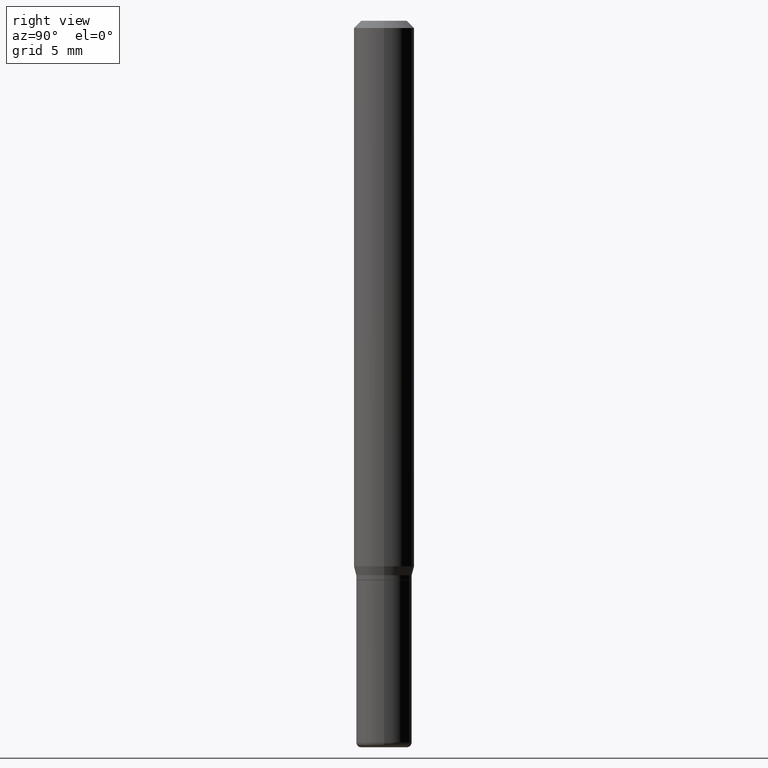
[diagram: clean part render]
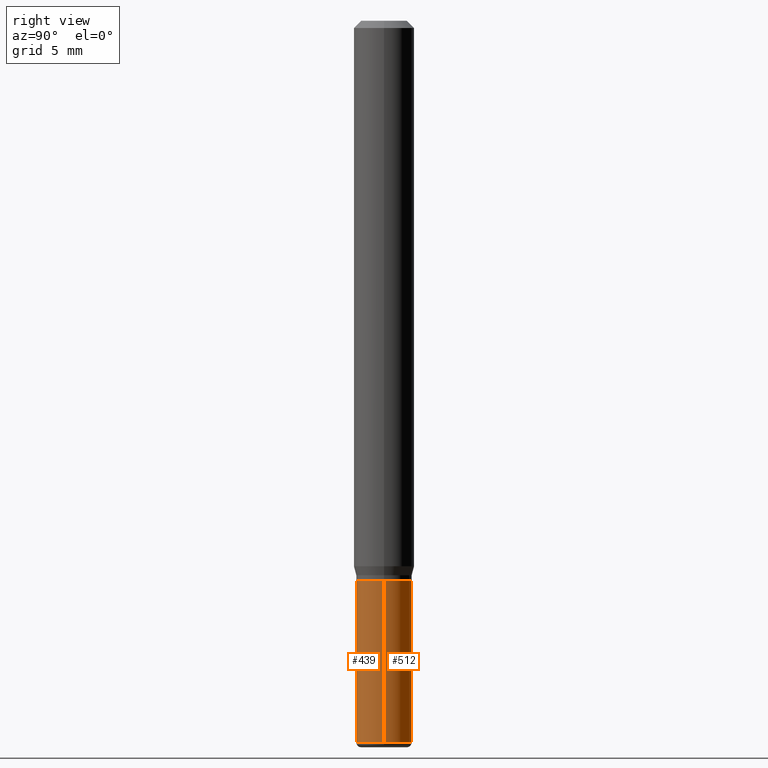
[diagram: same view with one multi-face feature highlighted, each face labeled with its STEP entity id]
A machine part, right view. The highlighted faces form ONE feature: a constant-radius fillet chain: 2 tangent blend faces with common blend radius 1.4605 mm. The faces share edges in the B-rep.
Their STEP definitions:
[1] entity #439 (Cylinder):
#8 = DIRECTION ( 'NONE',  ( 1.000000000000000000, -6.982962677686273810E-15, 0.000000000000000000 ) ) ;
#33 = DIRECTION ( 'NONE',  ( 1.000000000000000000, -6.982962677686263555E-15, 0.000000000000000000 ) ) ;
#36 = DIRECTION ( 'NONE',  ( -2.445468806185136597E-29, 3.491481338843145583E-15, 1.000000000000000000 ) ) ;
#44 = EDGE_CURVE ( 'NONE', #344, #70, #289, .T. ) ;
#70 = VERTEX_POINT ( 'NONE', #436 ) ;
#88 = DIRECTION ( 'NONE',  ( -2.445468806185136877E-29, 3.491481338843145188E-15, 1.000000000000000000 ) ) ;
#94 = CARTESIAN_POINT ( 'NONE',  ( -0.05749999999999994699, -4.208921997558003169E-15, -1.490000000000000213 ) ) ;
#98 = ORIENTED_EDGE ( 'NONE', *, *, #487, .F. ) ;
#130 = ORIENTED_EDGE ( 'NONE', *, *, #302, .T. ) ;
#140 = VECTOR ( 'NONE', #147, 39.37007874015748143 ) ;
#141 = ORIENTED_EDGE ( 'NONE', *, *, #178, .F. ) ;
#147 = DIRECTION ( 'NONE',  ( -2.445468806185136877E-29, 3.491481338843145188E-15, 1.000000000000000000 ) ) ;
#168 = LINE ( 'NONE', #328, #486 ) ;
#178 = EDGE_CURVE ( 'NONE', #250, #197, #435, .T. ) ;
#197 = VERTEX_POINT ( 'NONE', #307 ) ;
#210 = CARTESIAN_POINT ( 'NONE',  ( 2.824516471143833307E-29, -4.032660946363833383E-15, -1.155000000000000027 ) ) ;
#246 = CARTESIAN_POINT ( 'NONE',  ( 3.643748521215853910E-29, -5.202307194876288105E-15, -1.490000000000000213 ) ) ;
#250 = VERTEX_POINT ( 'NONE', #443 ) ;
#252 = CYLINDRICAL_SURFACE ( 'NONE', #460, 0.05749999999999997474 ) ;
#289 = CIRCLE ( 'NONE', #303, 0.05749999999999994699 ) ;
#299 = EDGE_LOOP ( 'NONE', ( #98, #389, #130, #141 ) ) ;
#302 = EDGE_CURVE ( 'NONE', #70, #197, #386, .T. ) ;
#303 = AXIS2_PLACEMENT_3D ( 'NONE', #246, #36, #33 ) ;
#307 = CARTESIAN_POINT ( 'NONE',  ( 0.05750000000000000250, -4.434181300330794192E-15, -1.155000000000000027 ) ) ;
#328 = CARTESIAN_POINT ( 'NONE',  ( -0.05749999999999997474, 4.085620730620574274E-16, -2.828387676896569661E-30 ) ) ;
#344 = VERTEX_POINT ( 'NONE', #94 ) ;
#371 = DIRECTION ( 'NONE',  ( -2.445468806185136597E-29, 3.491481338843145583E-15, 1.000000000000000000 ) ) ;
#376 = CARTESIAN_POINT ( 'NONE',  ( 0.05749999999999997474, -4.015203539669602175E-16, 2.803801646082662240E-30 ) ) ;
#386 = LINE ( 'NONE', #376, #140 ) ;
#389 = ORIENTED_EDGE ( 'NONE', *, *, #44, .T. ) ;
#404 = DIRECTION ( 'NONE',  ( 1.000000000000000000, -6.982962677686267499E-15, 4.876176775795936353E-29 ) ) ;
#435 = CIRCLE ( 'NONE', #503, 0.05750000000000000250 ) ;
#436 = CARTESIAN_POINT ( 'NONE',  ( 0.05749999999999994699, -5.603827548843247337E-15, -1.490000000000000213 ) ) ;
#439 = ADVANCED_FACE ( 'NONE', ( #454 ), #252, .T. ) ;
#443 = CARTESIAN_POINT ( 'NONE',  ( -0.05750000000000000250, -4.208921997558003169E-15, -1.155000000000000027 ) ) ;
#454 = FACE_OUTER_BOUND ( 'NONE', #299, .T. ) ;
#460 = AXIS2_PLACEMENT_3D ( 'NONE', #481, #490, #404 ) ;
#481 = CARTESIAN_POINT ( 'NONE',  ( 0.000000000000000000, 0.000000000000000000, 0.000000000000000000 ) ) ;
#486 = VECTOR ( 'NONE', #88, 39.37007874015748143 ) ;
#487 = EDGE_CURVE ( 'NONE', #344, #250, #168, .T. ) ;
#490 = DIRECTION ( 'NONE',  ( -2.445468806185136597E-29, 3.491481338843145583E-15, 1.000000000000000000 ) ) ;
#503 = AXIS2_PLACEMENT_3D ( 'NONE', #210, #371, #8 ) ;
[2] entity #512 (Cylinder):
#4 = DIRECTION ( 'NONE',  ( -2.445468806185136597E-29, 3.491481338843145583E-15, 1.000000000000000000 ) ) ;
#45 = CARTESIAN_POINT ( 'NONE',  ( 0.000000000000000000, 0.000000000000000000, 0.000000000000000000 ) ) ;
#70 = VERTEX_POINT ( 'NONE', #436 ) ;
#88 = DIRECTION ( 'NONE',  ( -2.445468806185136877E-29, 3.491481338843145188E-15, 1.000000000000000000 ) ) ;
#91 = AXIS2_PLACEMENT_3D ( 'NONE', #357, #517, #235 ) ;
#94 = CARTESIAN_POINT ( 'NONE',  ( -0.05749999999999994699, -4.208921997558003169E-15, -1.490000000000000213 ) ) ;
#108 = DIRECTION ( 'NONE',  ( 1.000000000000000000, -6.982962677686263555E-15, 0.000000000000000000 ) ) ;
#121 = EDGE_CURVE ( 'NONE', #197, #250, #269, .T. ) ;
#125 = DIRECTION ( 'NONE',  ( -2.445468806185136597E-29, 3.491481338843145583E-15, 1.000000000000000000 ) ) ;
#140 = VECTOR ( 'NONE', #147, 39.37007874015748143 ) ;
#147 = DIRECTION ( 'NONE',  ( -2.445468806185136877E-29, 3.491481338843145188E-15, 1.000000000000000000 ) ) ;
#168 = LINE ( 'NONE', #328, #486 ) ;
#176 = ORIENTED_EDGE ( 'NONE', *, *, #323, .T. ) ;
#197 = VERTEX_POINT ( 'NONE', #307 ) ;
#206 = FACE_OUTER_BOUND ( 'NONE', #271, .T. ) ;
#209 = DIRECTION ( 'NONE',  ( 1.000000000000000000, -6.982962677686267499E-15, 4.876176775795936353E-29 ) ) ;
#235 = DIRECTION ( 'NONE',  ( 1.000000000000000000, -6.982962677686273810E-15, 0.000000000000000000 ) ) ;
#250 = VERTEX_POINT ( 'NONE', #443 ) ;
#269 = CIRCLE ( 'NONE', #91, 0.05750000000000000250 ) ;
#271 = EDGE_LOOP ( 'NONE', ( #176, #415, #496, #456 ) ) ;
#302 = EDGE_CURVE ( 'NONE', #70, #197, #386, .T. ) ;
#307 = CARTESIAN_POINT ( 'NONE',  ( 0.05750000000000000250, -4.434181300330794192E-15, -1.155000000000000027 ) ) ;
#323 = EDGE_CURVE ( 'NONE', #70, #344, #407, .T. ) ;
#328 = CARTESIAN_POINT ( 'NONE',  ( -0.05749999999999997474, 4.085620730620574274E-16, -2.828387676896569661E-30 ) ) ;
#344 = VERTEX_POINT ( 'NONE', #94 ) ;
#357 = CARTESIAN_POINT ( 'NONE',  ( 2.824516471143833307E-29, -4.032660946363833383E-15, -1.155000000000000027 ) ) ;
#368 = CYLINDRICAL_SURFACE ( 'NONE', #417, 0.05749999999999997474 ) ;
#376 = CARTESIAN_POINT ( 'NONE',  ( 0.05749999999999997474, -4.015203539669602175E-16, 2.803801646082662240E-30 ) ) ;
#386 = LINE ( 'NONE', #376, #140 ) ;
#407 = CIRCLE ( 'NONE', #453, 0.05749999999999994699 ) ;
#415 = ORIENTED_EDGE ( 'NONE', *, *, #487, .T. ) ;
#417 = AXIS2_PLACEMENT_3D ( 'NONE', #45, #4, #209 ) ;
#436 = CARTESIAN_POINT ( 'NONE',  ( 0.05749999999999994699, -5.603827548843247337E-15, -1.490000000000000213 ) ) ;
#443 = CARTESIAN_POINT ( 'NONE',  ( -0.05750000000000000250, -4.208921997558003169E-15, -1.155000000000000027 ) ) ;
#453 = AXIS2_PLACEMENT_3D ( 'NONE', #467, #125, #108 ) ;
#456 = ORIENTED_EDGE ( 'NONE', *, *, #302, .F. ) ;
#467 = CARTESIAN_POINT ( 'NONE',  ( 3.643748521215853910E-29, -5.202307194876288105E-15, -1.490000000000000213 ) ) ;
#486 = VECTOR ( 'NONE', #88, 39.37007874015748143 ) ;
#487 = EDGE_CURVE ( 'NONE', #344, #250, #168, .T. ) ;
#496 = ORIENTED_EDGE ( 'NONE', *, *, #121, .F. ) ;
#512 = ADVANCED_FACE ( 'NONE', ( #206 ), #368, .T. ) ;
#517 = DIRECTION ( 'NONE',  ( -2.445468806185136597E-29, 3.491481338843145583E-15, 1.000000000000000000 ) ) ;